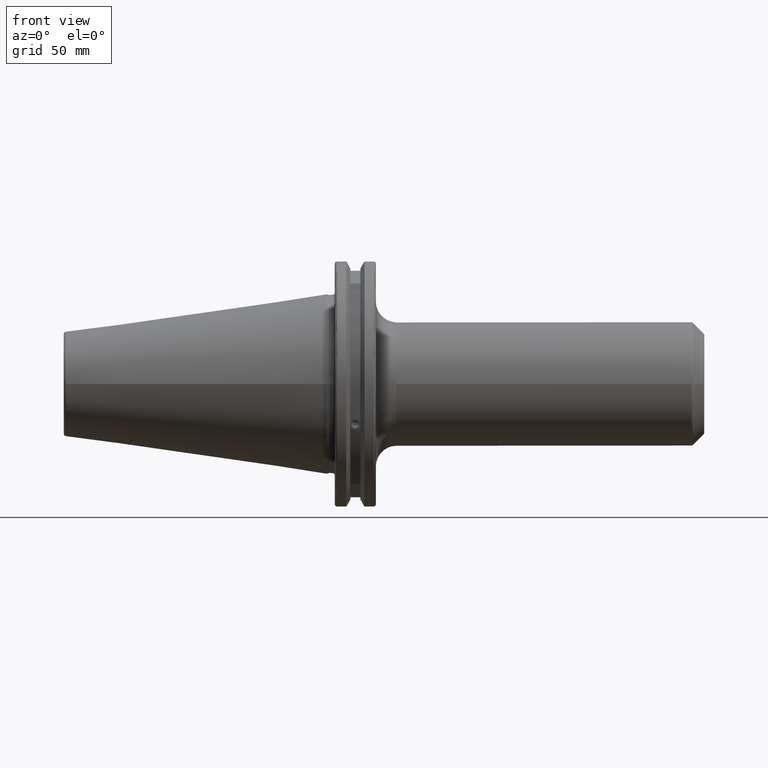
[diagram: clean part render]
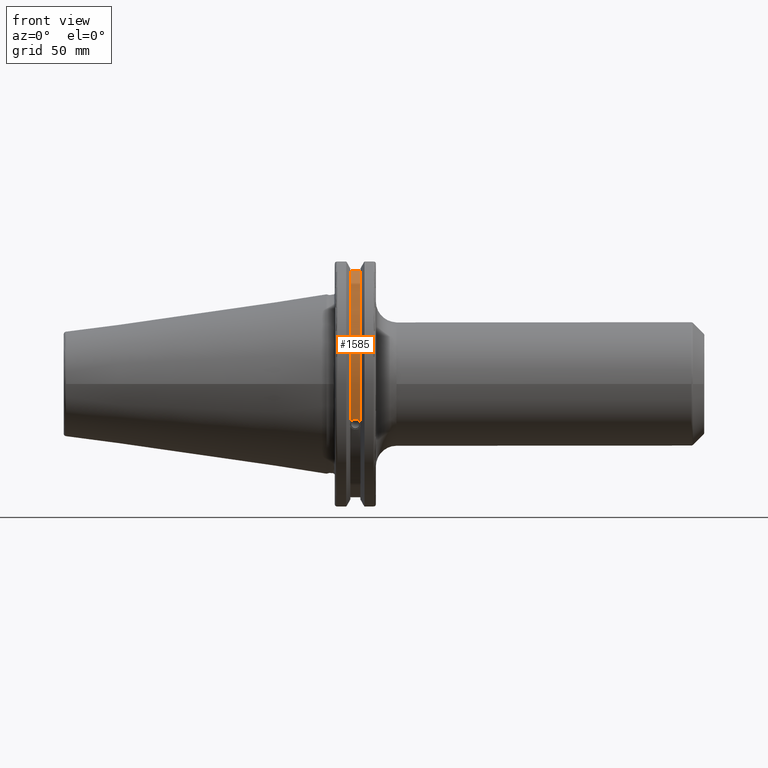
[diagram: same view with one face highlighted and labeled with its STEP entity id]
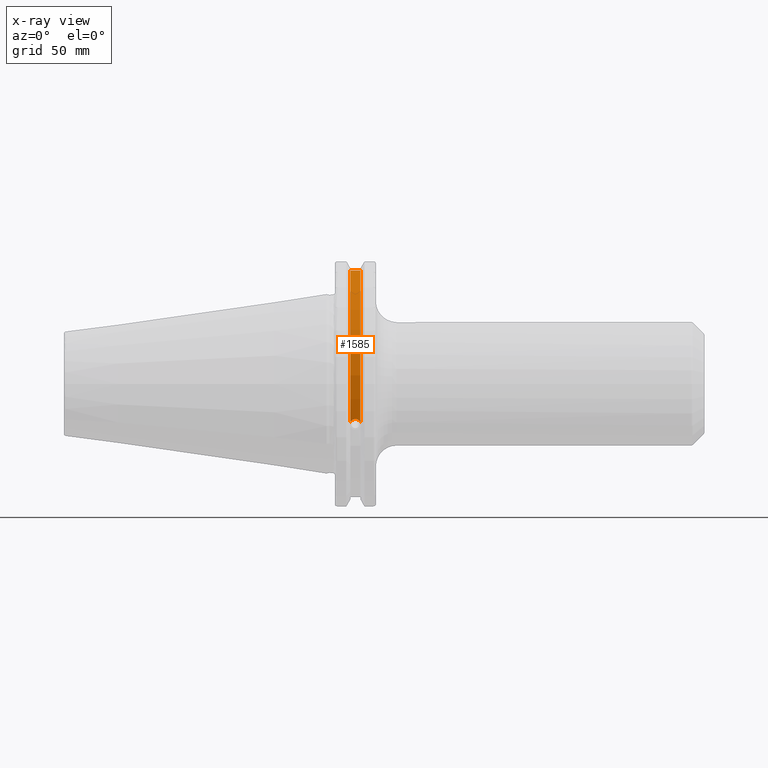
[diagram: x-ray of the same camera — body ghosted, the highlighted face saturated]
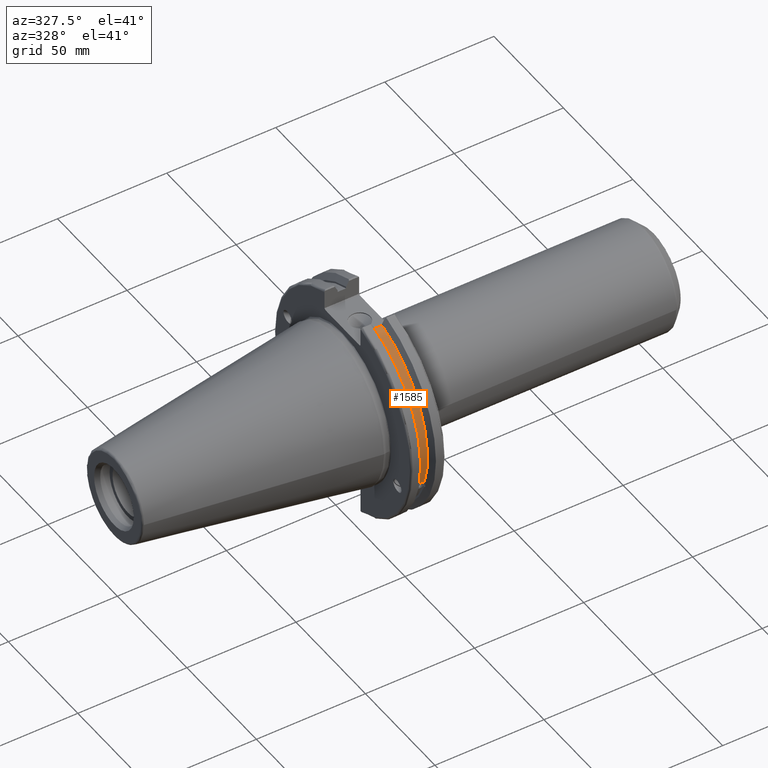
[diagram: same view with one face highlighted and labeled with its STEP entity id]
A machine part, front view. The second image highlights one B-rep face of the part: STEP entity #1585.
The next image is the same camera in x-ray: the body ghosted, the highlighted face saturated — about 0% of this face is hidden behind the body in this view.
A second angle (auxiliary view) of the same face is appended — the face is thin or edge-on in the first view.
In plain terms, the highlighted cylindrical surface (partial cylindrical patch) has radius 45.6435 mm, axis along (1, 0, 0).
Its self-contained STEP definition (entity closure, byte-faithful):
#129=CYLINDRICAL_SURFACE('',#1771,45.6435);
#210=FACE_OUTER_BOUND('',#319,.T.);
#319=EDGE_LOOP('',(#1462,#1463,#1464,#1465));
#401=CIRCLE('',#1768,45.6435);
#403=CIRCLE('',#1772,45.6435);
#472=LINE('',#3129,#564);
#564=VECTOR('',#2066,10.);
#607=B_SPLINE_CURVE_WITH_KNOTS('',3,(#2648,#2649,#2650,#2651,#2652,#2653,
#2654,#2655,#2656,#2657,#2658,#2659,#2660,#2661),.UNSPECIFIED.,.F.,.F.,
(4,2,2,2,2,2,4),(0.40154831257669,0.474697095495631,0.553813286063443,0.632929476631254,
0.712045667199066,0.791161857766877,0.864310640685818),.UNSPECIFIED.);
#688=VERTEX_POINT('',#2645);
#689=VERTEX_POINT('',#2647);
#770=VERTEX_POINT('',#3126);
#771=VERTEX_POINT('',#3128);
#862=EDGE_CURVE('',#689,#688,#607,.T.);
#969=EDGE_CURVE('',#771,#770,#472,.T.);
#1019=EDGE_CURVE('',#770,#689,#401,.T.);
#1021=EDGE_CURVE('',#771,#688,#403,.T.);
#1462=ORIENTED_EDGE('',*,*,#862,.T.);
#1463=ORIENTED_EDGE('',*,*,#1021,.F.);
#1464=ORIENTED_EDGE('',*,*,#969,.T.);
#1465=ORIENTED_EDGE('',*,*,#1019,.T.);
#1585=ADVANCED_FACE('',(#210),#129,.T.);
#1768=AXIS2_PLACEMENT_3D('',#3278,#2177,#2178);
#1771=AXIS2_PLACEMENT_3D('',#3281,#2183,#2184);
#1772=AXIS2_PLACEMENT_3D('',#3282,#2185,#2186);
#2066=DIRECTION('',(-1.,0.,0.));
#2177=DIRECTION('center_axis',(1.,0.,0.));
#2178=DIRECTION('ref_axis',(0.,0.,-1.));
#2183=DIRECTION('center_axis',(1.,0.,0.));
#2184=DIRECTION('ref_axis',(0.,-0.888619069115281,0.458645996390125));
#2185=DIRECTION('center_axis',(1.,0.,0.));
#2186=DIRECTION('ref_axis',(0.,0.,-1.));
#2645=CARTESIAN_POINT('',(13.0491,-43.1779814500336,-14.7983448449669));
#2647=CARTESIAN_POINT('',(9.2191,-43.1779814500336,-14.7983448449669));
#2648=CARTESIAN_POINT('Ctrl Pts',(9.2191,-43.1779814500335,-14.7983448449669));
#2649=CARTESIAN_POINT('Ctrl Pts',(9.32532177598176,-43.2545173750974,-14.5750315766731));
#2650=CARTESIAN_POINT('Ctrl Pts',(9.47680807557666,-43.3223492818373,-14.3712521044637));
#2651=CARTESIAN_POINT('Ctrl Pts',(9.83560503400179,-43.4340904392251,-14.0300988117073));
#2652=CARTESIAN_POINT('Ctrl Pts',(10.0717203280543,-43.4832903960863,-13.8760243976176));
#2653=CARTESIAN_POINT('Ctrl Pts',(10.5891059167872,-43.54802519266,-13.6715068146718));
#2654=CARTESIAN_POINT('Ctrl Pts',(10.870379364774,-43.5636826100883,-13.6211104428929));
#2655=CARTESIAN_POINT('Ctrl Pts',(11.397820635226,-43.5636826100883,-13.6211104428929));
#2656=CARTESIAN_POINT('Ctrl Pts',(11.6790940832128,-43.54802519266,-13.6715068146718));
#2657=CARTESIAN_POINT('Ctrl Pts',(12.1964796719457,-43.4832903960863,-13.8760243976176));
#2658=CARTESIAN_POINT('Ctrl Pts',(12.4325949659982,-43.4340904392251,-14.0300988117073));
#2659=CARTESIAN_POINT('Ctrl Pts',(12.7913919244233,-43.3223492818373,-14.3712521044637));
#2660=CARTESIAN_POINT('Ctrl Pts',(12.9428782240182,-43.2545173750974,-14.5750315766731));
#2661=CARTESIAN_POINT('Ctrl Pts',(13.0491,-43.1779814500335,-14.7983448449669));
#3126=CARTESIAN_POINT('',(9.2191,-12.95,43.7678716897452));
#3128=CARTESIAN_POINT('',(13.0491,-12.95,43.7678716897452));
#3129=CARTESIAN_POINT('',(11.1341,-12.95,43.7678716897452));
#3278=CARTESIAN_POINT('Origin',(9.2191,0.,0.));
#3281=CARTESIAN_POINT('Origin',(11.1341,0.,0.));
#3282=CARTESIAN_POINT('Origin',(13.0491,0.,0.));